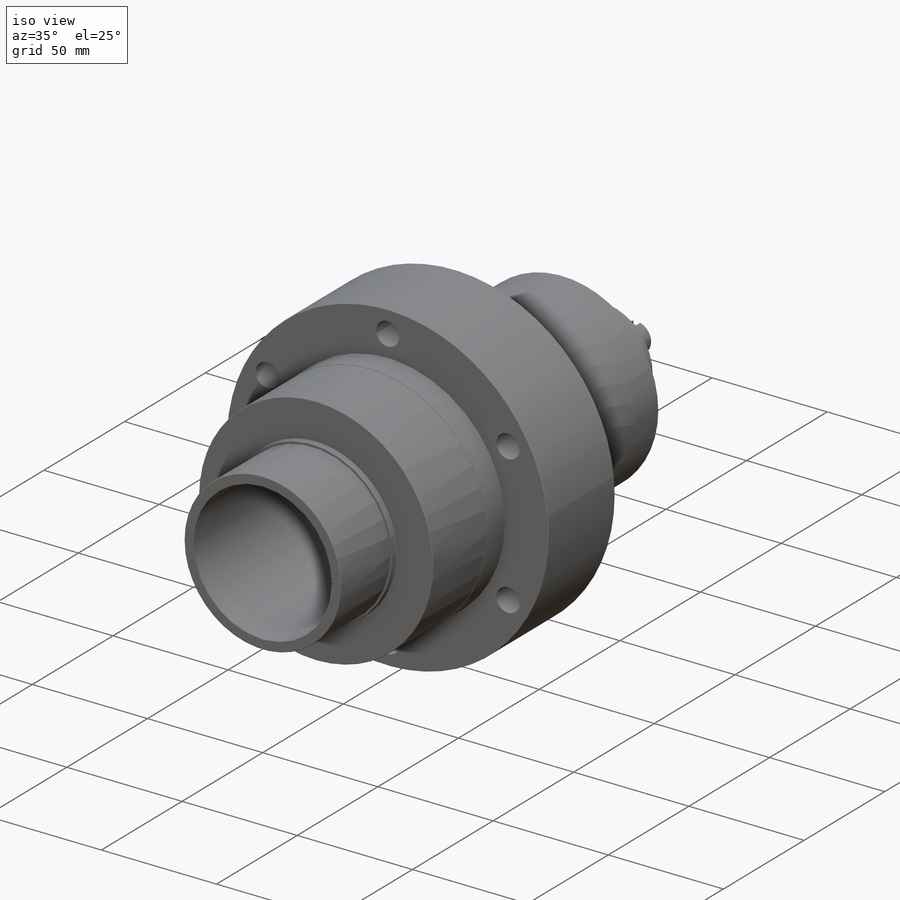
[diagram: iso view]
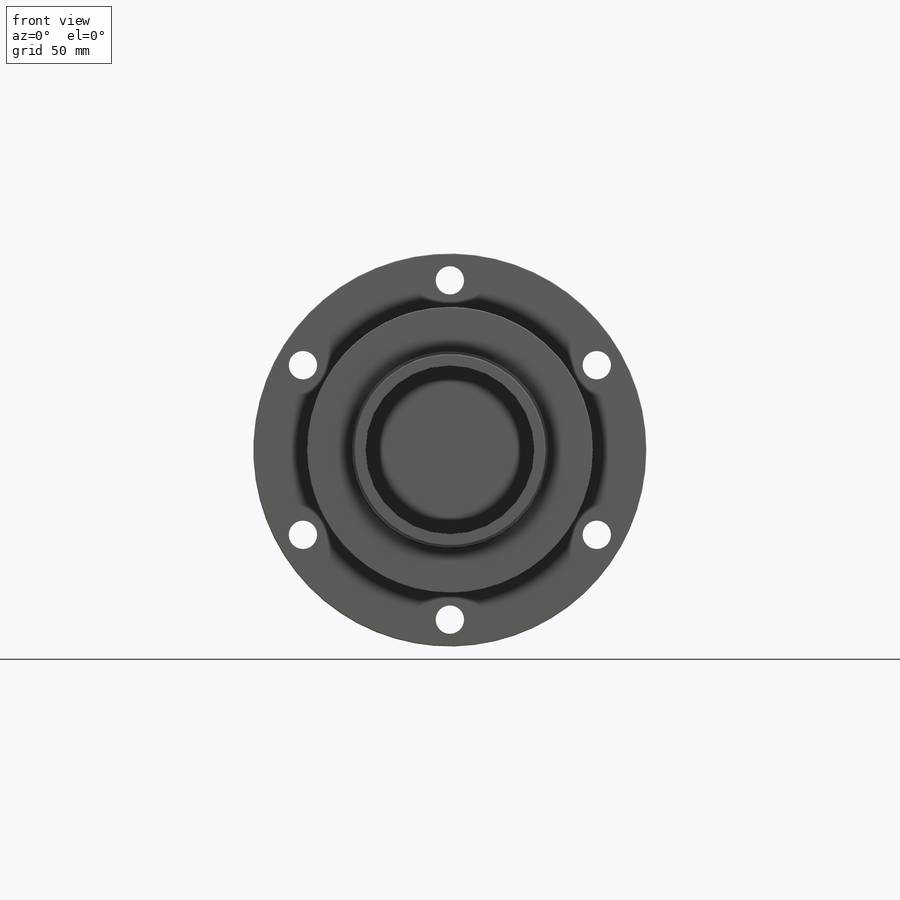
[diagram: front view]
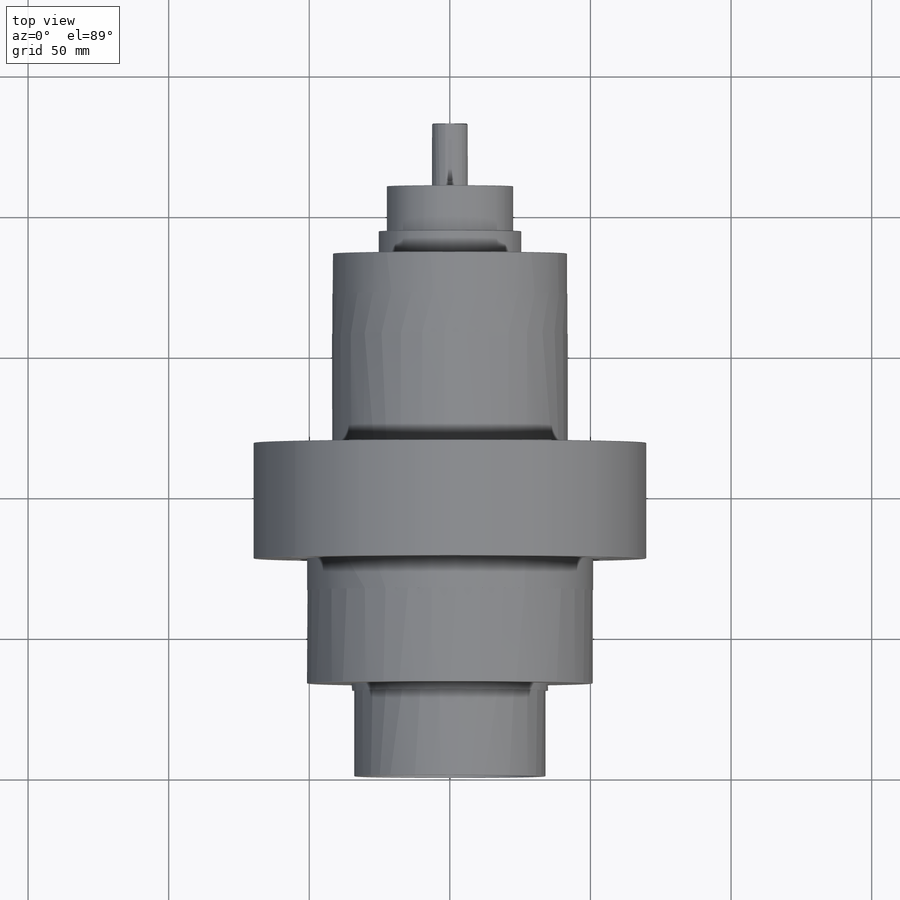
[diagram: top view]
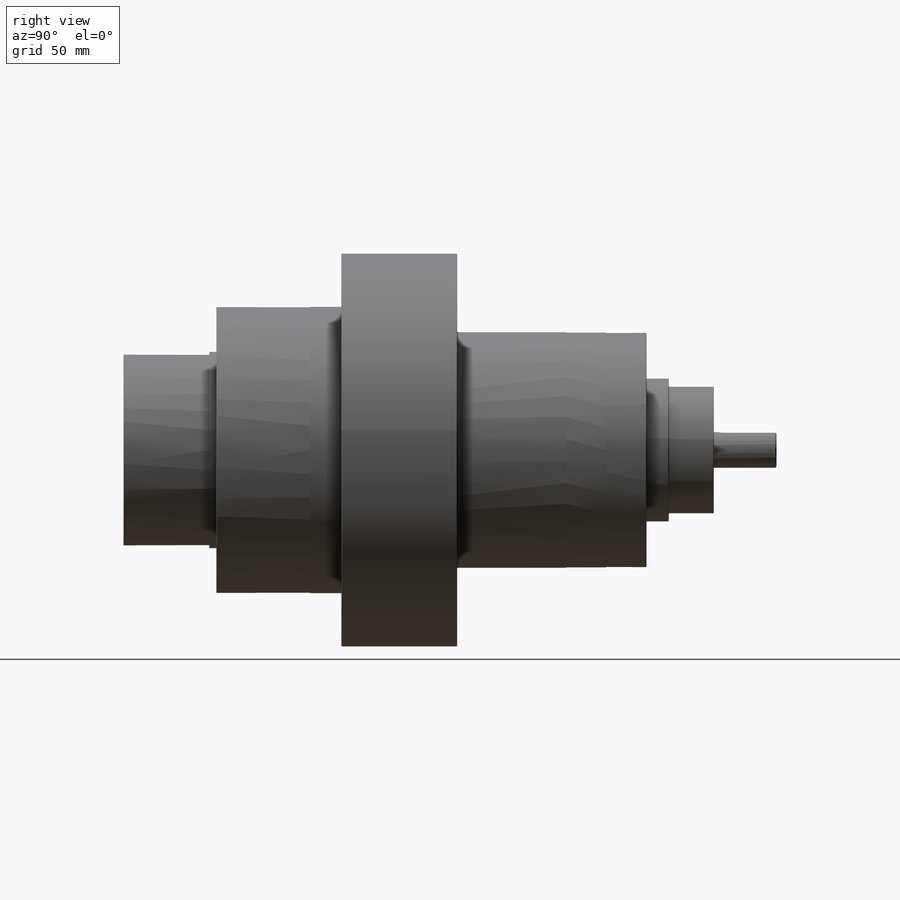
[diagram: right view]
SOLIDWORKS PART (.sldprt)
format: sldprt  version: not decoded by parser v0  size: 520,192 bytes
history: native  units: mm
features: sketch x16, plane x11, extrude x10, cut_extrude x4, material x1, hole x1, pattern_circular x1, chamfer x1, fillet x1 (+16 scaffold rows collapsed)
feature tree (62):
  scaffold x16  (default folders/planes/origin — collapsed)
  material  "Material <not specified>"
  plane  "L"  Offset=33.02mm
  sketch  "Sketch1"  dims[D1=69.85mm]
  extrude  "E"  [1 undecoded]
  sketch  "Sketch2"  dims[D2=67.9958mm D1=0.0mm]
  cut_extrude  "from drawing"  Depth=30.5054mm
  plane  "H"  Offset=44.45mm
  sketch  "Sketch3"  dims[D1=101.6mm]
  extrude  "C"  [1 undecoded]
  plane  "U"  Offset=11.176mm
  sketch  "Sketch4"  dims[D1=0.127mm]
  extrude  "Boss-Extrude3"  [1 undecoded]
  plane  "J"  Offset=41.148mm
  sketch  "Sketch5"  dims[D1=139.7mm]
  extrude  "B"  [1 undecoded]
  plane  "G"  Offset=76.2mm
  sketch  "Sketch6"  dims[D1=59.9948mm]
  cut_extrude  "F"  [1 undecoded]
  plane  "k"  Offset=67.31mm
  sketch  "Sketch8"  dims[D1=83.312mm]
  extrude  "D"  [1 undecoded]
  sketch  "Sketch9"  dims[D1=0.127mm]
  extrude  "Boss-Extrude6"  Depth=14.2875mm
  sketch  "Sketch10"  dims[D1=0.127mm]
  extrude  "Boss-Extrude7"  [1 undecoded]
  plane  "M"  Offset=7.9248mm
  plane  "N"  Offset=16.002mm
  plane  "A"  Offset=232.156mm
  sketch  "Sketch11"  dims[D1=50.8mm]
  extrude  "from drawing 2"  [1 undecoded]
  sketch  "Sketch12"  dims[D1=45.0088mm]
  extrude  "Q"  [1 undecoded]
  sketch  "Sketch13"  dims[D1=12.7mm]
  extrude  "R"  [1 undecoded]
  hole  "S"  Diameter=10.0838mm Depth=118.618mm
  sketch  "Sketch15"  dims[D1=120.65mm]
  sketch  "Sketch14"  dims[hole-wizard template sketch: 42 standard entries collapsed; hole parameters kept: c12.Thru Hole Depth=118.618mm c12.C'Bore Dia.=15.875mm c12.C'Bore Depth=9.525mm]
  pattern_circular  "CirPattern1"  Count=6 Angle=360deg
  sketch  "Sketch16"  dims[D1=35.052mm]
  cut_extrude  "Cut-Extrude3"  Depth=12.7mm
  plane  "Plane10"
  plane  "Bottom of keyway"  Offset=10.922mm
  sketch  "Sketch17"  dims[D1=3.175mm D2=19.05mm]
  cut_extrude  "T"  [1 undecoded]
  chamfer  "Chamfer1"  Distance=0.381mm Angle=45deg
  fillet  "Fillet1"  Radius=0.254mm
decode coverage: 23 of 34 modeling features carry decoded parameters
note: ~ marks probable driven/reference dimensions
note: 11 parameter values undecoded
summary: no parameter record found for 11 features
note: suppression state not decoded; provenance and decode notes live in map.json
